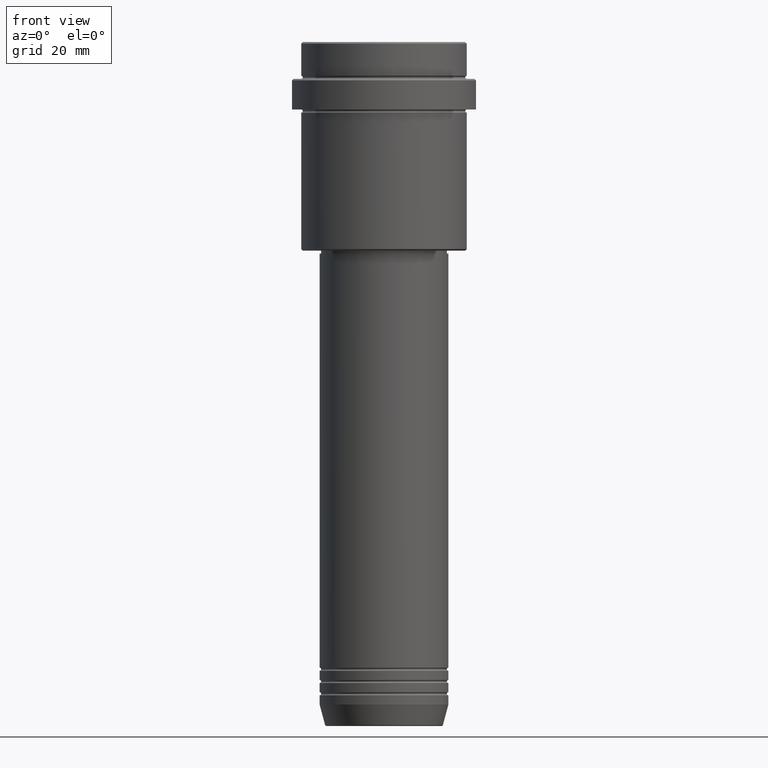
[diagram: clean part render]
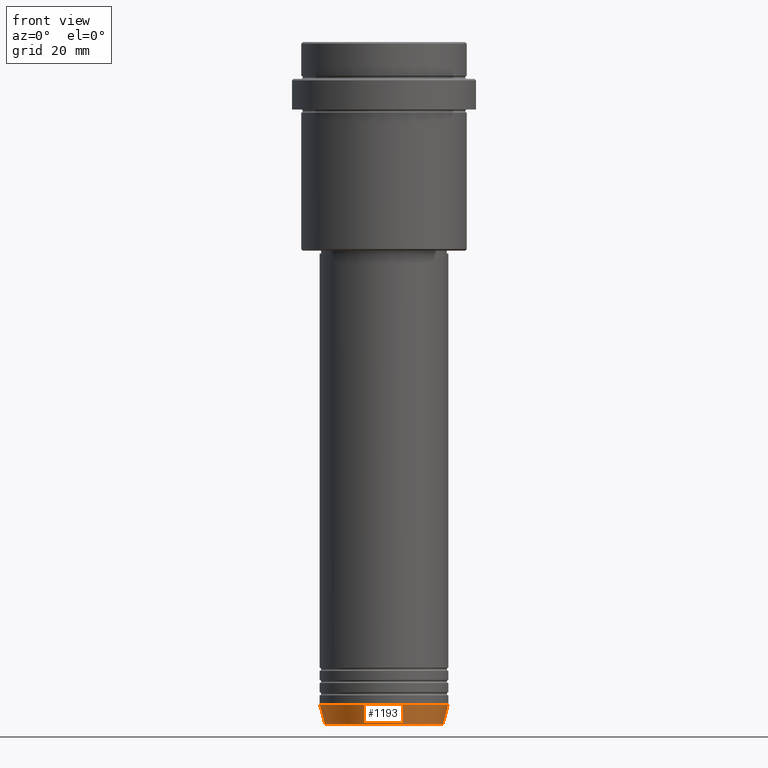
[diagram: same view with one face highlighted and labeled with its STEP entity id]
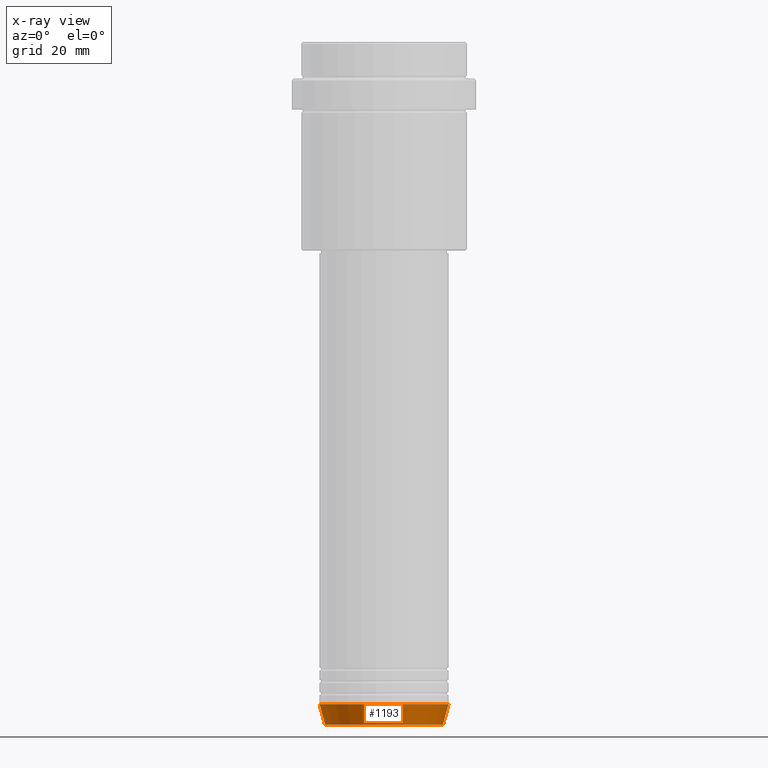
[diagram: x-ray of the same camera — body ghosted, the highlighted face saturated]
A machine part, front view. The second image highlights one B-rep face of the part: STEP entity #1193.
The next image is the same camera in x-ray: the body ghosted, the highlighted face saturated — about 0% of this face is hidden behind the body in this view.
In plain terms, the highlighted conical surface has half-angle 15 deg.
Its self-contained STEP definition (entity closure, byte-faithful):
#18 = VERTEX_POINT ( 'NONE', #139 ) ;
#102 = ORIENTED_EDGE ( 'NONE', *, *, #341, .F. ) ;
#126 = ORIENTED_EDGE ( 'NONE', *, *, #1353, .T. ) ;
#139 = CARTESIAN_POINT ( 'NONE',  ( -21.00000000000000000, 2.571758278209441661E-15, -215.9999999999999716 ) ) ;
#177 = DIRECTION ( 'NONE',  ( -0.000000000000000000, -0.000000000000000000, 1.000000000000000000 ) ) ;
#261 = EDGE_LOOP ( 'NONE', ( #1333, #1377, #126, #102 ) ) ;
#305 = DIRECTION ( 'NONE',  ( 1.000000000000000000, 0.000000000000000000, 0.000000000000000000 ) ) ;
#307 = AXIS2_PLACEMENT_3D ( 'NONE', #430, #1293, #977 ) ;
#317 = CARTESIAN_POINT ( 'NONE',  ( 21.00000000000000000, 0.000000000000000000, -215.9999999999999716 ) ) ;
#332 = VERTEX_POINT ( 'NONE', #317 ) ;
#341 = EDGE_CURVE ( 'NONE', #18, #332, #1056, .T. ) ;
#400 = VECTOR ( 'NONE', #1355, 1000.000000000000000 ) ;
#430 = CARTESIAN_POINT ( 'NONE',  ( 0.000000000000000000, 0.000000000000000000, -215.9999999999999716 ) ) ;
#620 = CARTESIAN_POINT ( 'NONE',  ( 19.22365507213719127, 0.000000000000000000, -222.6294095225512422 ) ) ;
#706 = LINE ( 'NONE', #1341, #1222 ) ;
#744 = CONICAL_SURFACE ( 'NONE', #307, 21.00000000000000000, 0.2617993877991500740 ) ;
#745 = CARTESIAN_POINT ( 'NONE',  ( 0.000000000000000000, 0.000000000000000000, -222.6294095225512422 ) ) ;
#785 = CARTESIAN_POINT ( 'NONE',  ( -21.00000000000000000, 2.571758278209441661E-15, -215.9999999999999716 ) ) ;
#898 = VERTEX_POINT ( 'NONE', #1173 ) ;
#910 = DIRECTION ( 'NONE',  ( 0.2588190451025213501, 0.000000000000000000, 0.9659258262890680902 ) ) ;
#916 = LINE ( 'NONE', #785, #400 ) ;
#963 = DIRECTION ( 'NONE',  ( 1.000000000000000000, 0.000000000000000000, 0.000000000000000000 ) ) ;
#977 = DIRECTION ( 'NONE',  ( 1.000000000000000000, 0.000000000000000000, 0.000000000000000000 ) ) ;
#991 = FACE_OUTER_BOUND ( 'NONE', #261, .T. ) ;
#1024 = EDGE_CURVE ( 'NONE', #898, #1094, #1365, .T. ) ;
#1056 = CIRCLE ( 'NONE', #1382, 21.00000000000000000 ) ;
#1094 = VERTEX_POINT ( 'NONE', #620 ) ;
#1107 = AXIS2_PLACEMENT_3D ( 'NONE', #745, #1392, #305 ) ;
#1173 = CARTESIAN_POINT ( 'NONE',  ( -19.22365507213719127, 2.462988521705000655E-15, -222.6294095225512422 ) ) ;
#1193 = ADVANCED_FACE ( 'NONE', ( #991 ), #744, .T. ) ;
#1222 = VECTOR ( 'NONE', #910, 1000.000000000000000 ) ;
#1270 = EDGE_CURVE ( 'NONE', #898, #18, #916, .T. ) ;
#1274 = CARTESIAN_POINT ( 'NONE',  ( 0.000000000000000000, 0.000000000000000000, -215.9999999999999716 ) ) ;
#1293 = DIRECTION ( 'NONE',  ( -0.000000000000000000, -0.000000000000000000, 1.000000000000000000 ) ) ;
#1333 = ORIENTED_EDGE ( 'NONE', *, *, #1270, .F. ) ;
#1341 = CARTESIAN_POINT ( 'NONE',  ( 21.00000000000000000, 0.000000000000000000, -215.9999999999999716 ) ) ;
#1353 = EDGE_CURVE ( 'NONE', #1094, #332, #706, .T. ) ;
#1355 = DIRECTION ( 'NONE',  ( -0.2588190451025213501, 3.169619151431772337E-17, 0.9659258262890680902 ) ) ;
#1365 = CIRCLE ( 'NONE', #1107, 19.22365507213719127 ) ;
#1377 = ORIENTED_EDGE ( 'NONE', *, *, #1024, .T. ) ;
#1382 = AXIS2_PLACEMENT_3D ( 'NONE', #1274, #177, #963 ) ;
#1392 = DIRECTION ( 'NONE',  ( -0.000000000000000000, -0.000000000000000000, 1.000000000000000000 ) ) ;